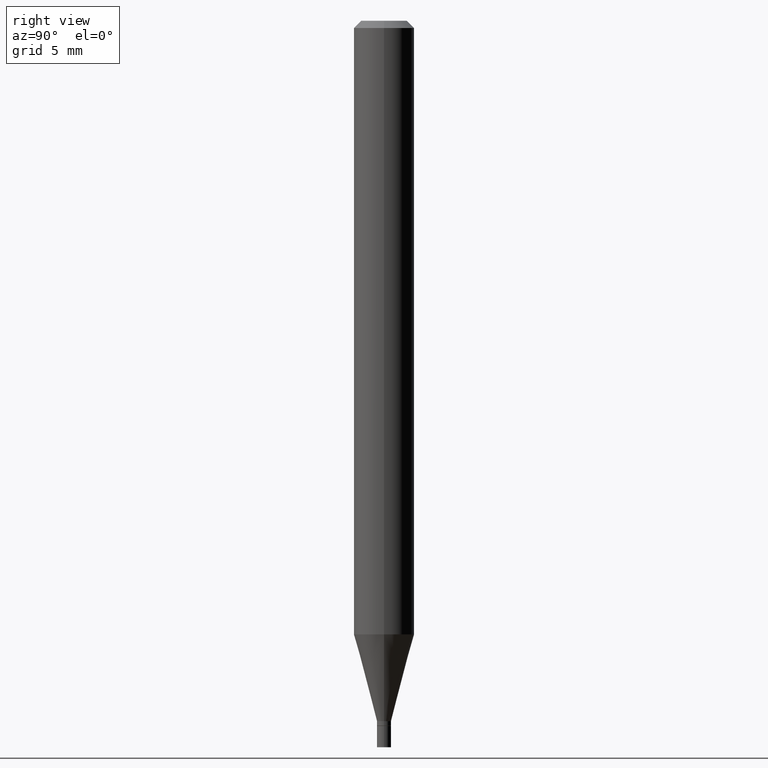
[diagram: clean part render]
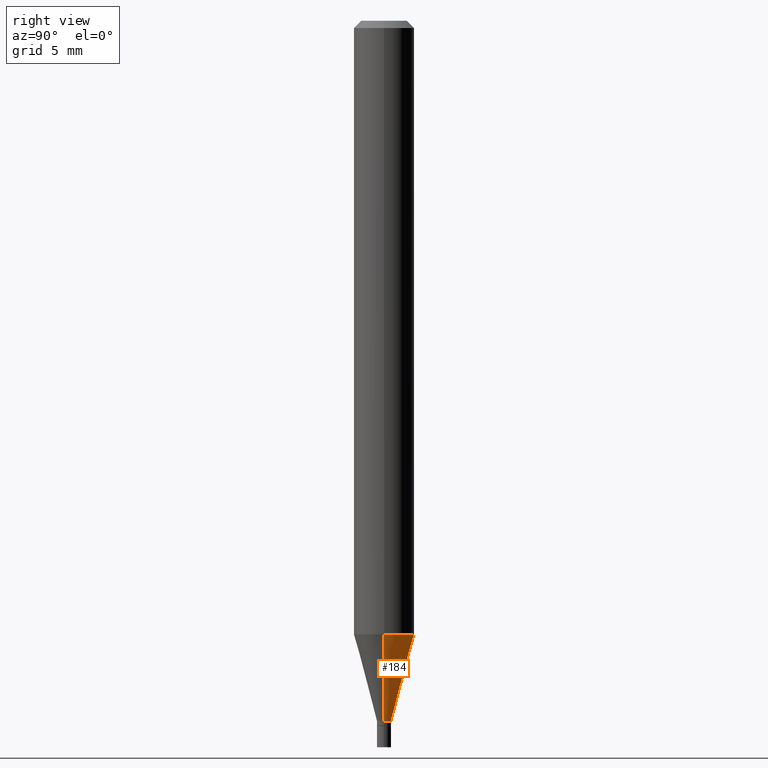
[diagram: same view with one face highlighted and labeled with its STEP entity id]
A machine part, right view. The second image highlights one B-rep face of the part: STEP entity #184.
In plain terms, the highlighted conical surface has half-angle 15 deg.
Its self-contained STEP definition (entity closure, byte-faithful):
#13 = VERTEX_POINT ( 'NONE', #315 ) ;
#17 = VECTOR ( 'NONE', #73, 39.37007874015748143 ) ;
#56 = CIRCLE ( 'NONE', #392, 0.01449999999999992441 ) ;
#58 = CARTESIAN_POINT ( 'NONE',  ( 3.098070429759336383E-29, -4.423223499955610282E-15, -1.266861561236694023 ) ) ;
#59 = DIRECTION ( 'NONE',  ( 1.000000000000000000, -6.982962677686269077E-15, 0.000000000000000000 ) ) ;
#73 = DIRECTION ( 'NONE',  ( 0.2588190451025211281, 1.565188264969623940E-15, 0.9659258262890682012 ) ) ;
#79 = AXIS2_PLACEMENT_3D ( 'NONE', #58, #309, #193 ) ;
#100 = DIRECTION ( 'NONE',  ( 1.000000000000000000, -6.982962677686269077E-15, 0.000000000000000000 ) ) ;
#103 = CARTESIAN_POINT ( 'NONE',  ( -0.01449999999999992441, -4.945653319281974468E-15, -1.446000000000000174 ) ) ;
#105 = CARTESIAN_POINT ( 'NONE',  ( -0.06250000000000000000, -3.979134290105546877E-15, -1.266861561236694023 ) ) ;
#112 = ORIENTED_EDGE ( 'NONE', *, *, #338, .F. ) ;
#125 = DIRECTION ( 'NONE',  ( -2.445468806185136597E-29, 3.491481338843145583E-15, 1.000000000000000000 ) ) ;
#127 = CARTESIAN_POINT ( 'NONE',  ( 3.536147893743707559E-29, -5.048682015967188692E-15, -1.446000000000000174 ) ) ;
#133 = EDGE_CURVE ( 'NONE', #294, #13, #56, .T. ) ;
#148 = ORIENTED_EDGE ( 'NONE', *, *, #228, .F. ) ;
#151 = VERTEX_POINT ( 'NONE', #105 ) ;
#156 = CONICAL_SURFACE ( 'NONE', #296, 0.01449999999999992441, 0.2617993877991497964 ) ;
#164 = FACE_OUTER_BOUND ( 'NONE', #337, .T. ) ;
#184 = ADVANCED_FACE ( 'NONE', ( #164 ), #156, .T. ) ;
#193 = DIRECTION ( 'NONE',  ( 1.000000000000000000, -6.982962677686262766E-15, 0.000000000000000000 ) ) ;
#197 = VECTOR ( 'NONE', #243, 39.37007874015748143 ) ;
#202 = LINE ( 'NONE', #268, #17 ) ;
#228 = EDGE_CURVE ( 'NONE', #396, #151, #414, .T. ) ;
#243 = DIRECTION ( 'NONE',  ( -0.2588190451025211281, 5.211531920934548675E-15, 0.9659258262890682012 ) ) ;
#266 = LINE ( 'NONE', #103, #197 ) ;
#268 = CARTESIAN_POINT ( 'NONE',  ( 0.01449999999999992441, -5.149934974793639054E-15, -1.446000000000000174 ) ) ;
#278 = CARTESIAN_POINT ( 'NONE',  ( 3.536147893743707559E-29, -5.048682015967188692E-15, -1.446000000000000174 ) ) ;
#294 = VERTEX_POINT ( 'NONE', #367 ) ;
#296 = AXIS2_PLACEMENT_3D ( 'NONE', #127, #125, #59 ) ;
#307 = CARTESIAN_POINT ( 'NONE',  ( 0.06250000000000000000, -4.859658667311001952E-15, -1.266861561236694023 ) ) ;
#309 = DIRECTION ( 'NONE',  ( -2.445468806185136597E-29, 3.491481338843145583E-15, 1.000000000000000000 ) ) ;
#315 = CARTESIAN_POINT ( 'NONE',  ( -0.01449999999999992441, -4.462393804693759884E-15, -1.446000000000000174 ) ) ;
#316 = ORIENTED_EDGE ( 'NONE', *, *, #133, .T. ) ;
#337 = EDGE_LOOP ( 'NONE', ( #316, #365, #148, #112 ) ) ;
#338 = EDGE_CURVE ( 'NONE', #294, #396, #202, .T. ) ;
#365 = ORIENTED_EDGE ( 'NONE', *, *, #403, .T. ) ;
#367 = CARTESIAN_POINT ( 'NONE',  ( 0.01449999999999992441, -5.149934974793639054E-15, -1.446000000000000174 ) ) ;
#392 = AXIS2_PLACEMENT_3D ( 'NONE', #278, #424, #100 ) ;
#396 = VERTEX_POINT ( 'NONE', #307 ) ;
#403 = EDGE_CURVE ( 'NONE', #13, #151, #266, .T. ) ;
#414 = CIRCLE ( 'NONE', #79, 0.06250000000000000000 ) ;
#424 = DIRECTION ( 'NONE',  ( -2.445468806185136597E-29, 3.491481338843145583E-15, 1.000000000000000000 ) ) ;